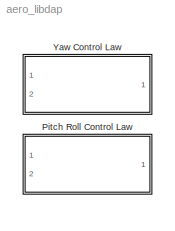
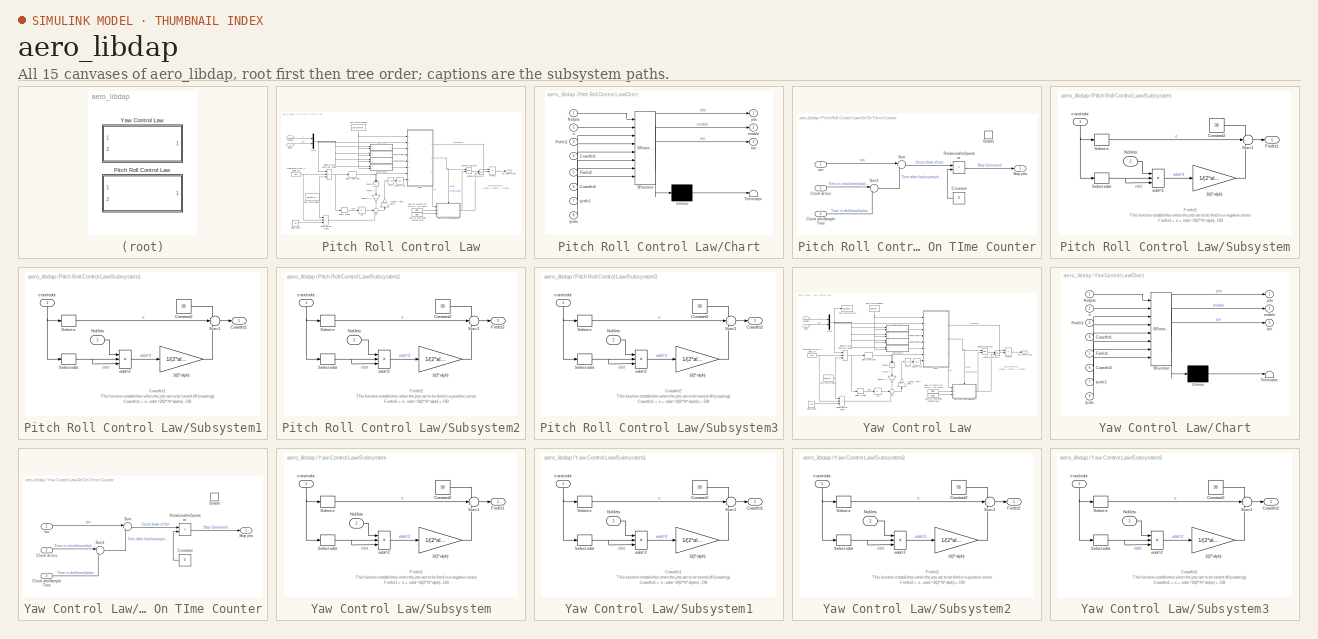
[diagram: thumbnail index - all 15 canvases of the model, root first then tree order]
MODEL aero_libdap
KIND library
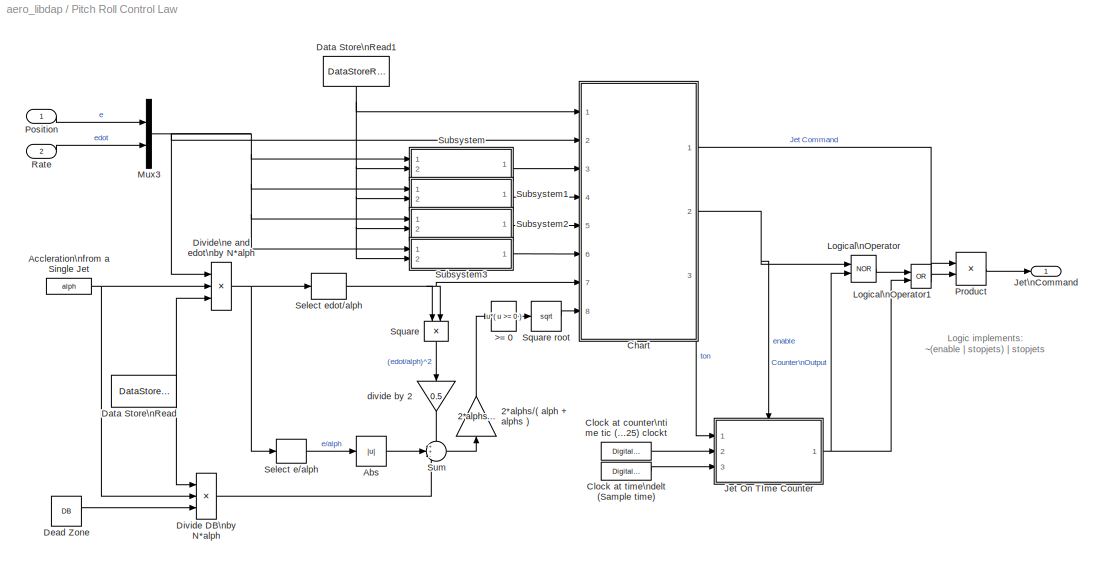
BLOCK [SubSystem] Pitch Roll Control Law
  MaskCallbackString = ||||
  MaskDescription = Implements Control Law for the LM. Works for yaw, u and v jet axes.
  MaskEnableString = on,on,on,on,on
  MaskIconFrame = on
  MaskIconOpaque = on
  MaskIconRotate = none
  MaskIconUnits = autoscale
  MaskPromptString = Single Jet Accel:|Single Jet Switch Curve Accel:|Dead Band:|Min. Jet On Time:|Sample Time:
  MaskStyleString = edit,edit,edit,edit,edit
  MaskTabNameString = ,,,,
  MaskToolTipString = on,on,on,on,on
  MaskTunableValueString = on,on,on,on,on
  MaskType = Control Law
  MaskValueString = ||DB|tmin|delt
  MaskVarAliasString = ,,,,
  MaskVariables = alph=@1;alphs=@2;DB=@3;tmin=@4;delt=@5;
  MaskVisibilityString = on,on,on,on,on
  MinAlgLoopOccurrences = off
  Ports = [2, 1]
  PropExecContextAcrossSSBoundary = on
  RTWSystemCode = Auto
  TreatAsAtomicUnit = off
BLOCK [Gain] Pitch Roll Control Law/2*alphs//( alph + alphs )
  Gain = 2*alphs/( alph + alphs )
BLOCK [Fcn] Pitch Roll Control Law/>= 0
  Expr = u*( u >= 0 )
BLOCK [Abs] Pitch Roll Control Law/Abs
BLOCK [Constant] Pitch Roll Control Law/Accleration\nfrom a Single Jet
  Value = alph
BLOCK [SubSystem] Pitch Roll Control Law/Chart
  MaskDescription = Stateflow diagram
  MaskDisplay = plot(sf('Private','sfblk','xIcon'),sf('Private','sfblk','yIcon'));text(0.5,0,sf('Private', 'sfblk', 'tIcon'),'HorizontalAl','Center','VerticalAl','Bottom');
  MaskIconFrame = off
  MaskIconOpaque = off
  MaskIconRotate = none
  MaskIconUnits = autoscale
  MaskSelfModifiable = on
  MaskType = Stateflow
  MinAlgLoopOccurrences = off
  Ports = [8, 3]
  PropExecContextAcrossSSBoundary = on
  RTWSystemCode = Auto
  TreatAsAtomicUnit = off
BLOCK [Demux] Pitch Roll Control Law/Chart/ Demux 
  Outputs = 1
  Ports = [1, 1]
BLOCK [S-Function] Pitch Roll Control Law/Chart/ SFunction 
  FunctionName = sf_sfun
  Parameters = delt,tmin
  PortCounts = [8 4]
  Ports = [8, 4]
  Tag = Stateflow S-Function aero_libdap 1
BLOCK [Terminator] Pitch Roll Control Law/Chart/ Terminator 
BLOCK [Inport] Pitch Roll Control Law/Chart/Coastfct1
  IconDisplay = Port number
  LatchInput = off
  Port = 4
BLOCK [Inport] Pitch Roll Control Law/Chart/Coastfct2
  IconDisplay = Port number
  LatchInput = off
  Port = 6
BLOCK [Inport] Pitch Roll Control Law/Chart/Firefct1
  IconDisplay = Port number
  LatchInput = off
  Port = 3
BLOCK [Inport] Pitch Roll Control Law/Chart/Firefct2
  IconDisplay = Port number
  LatchInput = off
  Port = 5
BLOCK [Inport] Pitch Roll Control Law/Chart/Nofjets
  IconDisplay = Port number
  LatchInput = off
  Port = 1
BLOCK [Inport] Pitch Roll Control Law/Chart/e
  IconDisplay = Port number
  LatchInput = off
  Port = 2
BLOCK [Outport] Pitch Roll Control Law/Chart/enable
  IconDisplay = Port number
  Port = 2
BLOCK [Outport] Pitch Roll Control Law/Chart/jets
  IconDisplay = Port number
BLOCK [Inport] Pitch Roll Control Law/Chart/tjcalc
  IconDisplay = Port number
  LatchInput = off
  Port = 8
BLOCK [Inport] Pitch Roll Control Law/Chart/tjcalc1
  IconDisplay = Port number
  LatchInput = off
  Port = 7
BLOCK [Outport] Pitch Roll Control Law/Chart/ton
  IconDisplay = Port number
  Port = 3
BLOCK [DigitalClock] Pitch Roll Control Law/Clock at counter\ntime tic (0.000625) clockt
  SampleTime = 0.000625
BLOCK [DigitalClock] Pitch Roll Control Law/Clock at time\ndelt (Sample time)
  SampleTime = delt
BLOCK [DataStoreRead] Pitch Roll Control Law/Data Store\nRead
  DataStoreName = PitchRollJets
  DialogController = Simulink.DDGSource
  SampleTime = delt
BLOCK [DataStoreRead] Pitch Roll Control Law/Data Store\nRead1
  DataStoreName = PitchRollJets
  DialogController = Simulink.DDGSource
  SampleTime = delt
BLOCK [Constant] Pitch Roll Control Law/Dead Zone
  Value = DB
BLOCK [Product] Pitch Roll Control Law/Divide DB\nby N*alph
  Inputs = //*
  Ports = [3, 1]
BLOCK [Product] Pitch Roll Control Law/Divide\ne and edot\nby N*alph
  Inputs = *//
  Ports = [3, 1]
BLOCK [SubSystem] Pitch Roll Control Law/Jet On TIme Counter
  MinAlgLoopOccurrences = off
  Ports = [3, 1, 1]
  PropExecContextAcrossSSBoundary = on
  RTWSystemCode = Auto
  TreatAsAtomicUnit = on
BLOCK [Inport] Pitch Roll Control Law/Jet On TIme Counter/Clock at tics
  IconDisplay = Port number
  LatchInput = off
  Port = 2
BLOCK [Inport] Pitch Roll Control Law/Jet On TIme Counter/Clock at\nSample Time
  IconDisplay = Port number
  LatchInput = off
  Port = 3
BLOCK [Constant] Pitch Roll Control Law/Jet On TIme Counter/Constant
  Value = 0
BLOCK [EnablePort] Pitch Roll Control Law/Jet On TIme Counter/Enable
  Ports = []
  StatesWhenEnabling = reset
BLOCK [RelationalOperator] Pitch Roll Control Law/Jet On TIme Counter/Relational\nOperator
  Operator = >
BLOCK [Outport] Pitch Roll Control Law/Jet On TIme Counter/Stop jets
  IconDisplay = Port number
BLOCK [Sum] Pitch Roll Control Law/Jet On TIme Counter/Sum
  IconShape = round
  Inputs = |+-
  Ports = [2, 1]
BLOCK [Sum] Pitch Roll Control Law/Jet On TIme Counter/Sum1
  IconShape = round
  Inputs = |+-
  Ports = [2, 1]
BLOCK [Inport] Pitch Roll Control Law/Jet On TIme Counter/ton
  IconDisplay = Port number
  LatchInput = off
  Port = 1
BLOCK [Outport] Pitch Roll Control Law/Jet\nCommand
  IconDisplay = Port number
  InitialOutput = 0
BLOCK [Logic] Pitch Roll Control Law/Logical\nOperator
  Operator = NOR
  Ports = [2, 1]
BLOCK [Logic] Pitch Roll Control Law/Logical\nOperator1
  Operator = OR
  Ports = [2, 1]
BLOCK [Mux] Pitch Roll Control Law/Mux3
  DisplayOption = bar
  Inputs = 2
  Ports = [2, 1]
BLOCK [Inport] Pitch Roll Control Law/Position
  IconDisplay = Port number
  LatchInput = off
  Port = 1
BLOCK [Product] Pitch Roll Control Law/Product
  Ports = [2, 1]
BLOCK [Inport] Pitch Roll Control Law/Rate
  IconDisplay = Port number
  LatchInput = off
  Port = 2
BLOCK [Selector] Pitch Roll Control Law/Select e//alph
  Elements = [1]
  InputPortWidth = 2
  Ports = [1, 1]
BLOCK [Selector] Pitch Roll Control Law/Select edot//alph
  Elements = [2]
  InputPortWidth = 2
  Ports = [1, 1]
BLOCK [Product] Pitch Roll Control Law/Square
  Ports = [2, 1]
BLOCK [Math] Pitch Roll Control Law/Square root
  Operator = sqrt
  Ports = [1, 1]
BLOCK [SubSystem] Pitch Roll Control Law/Subsystem
  MinAlgLoopOccurrences = off
  Ports = [2, 1]
  PropExecContextAcrossSSBoundary = on
  RTWSystemCode = Auto
  TreatAsAtomicUnit = off
BLOCK [Gain] Pitch Roll Control Law/Subsystem/1//(2*alph)
  Gain = 1/(2*alph)
BLOCK [Constant] Pitch Roll Control Law/Subsystem/Constant2
  Value = DB
BLOCK [Outport] Pitch Roll Control Law/Subsystem/Firefct1
  IconDisplay = Port number
BLOCK [Inport] Pitch Roll Control Law/Subsystem/NofJets
  IconDisplay = Port number
  LatchInput = off
  Port = 2
BLOCK [Selector] Pitch Roll Control Law/Subsystem/Select e
  Elements = [1]
  InputPortWidth = 2
  Ports = [1, 1]
BLOCK [Selector] Pitch Roll Control Law/Subsystem/Select edot
  Elements = [2]
  InputPortWidth = 2
  Ports = [1, 1]
BLOCK [Sum] Pitch Roll Control Law/Subsystem/Sum1
  IconShape = round
  Inputs = -++
  Ports = [3, 1]
BLOCK [Inport] Pitch Roll Control Law/Subsystem/e and edot
  IconDisplay = Port number
  LatchInput = off
  Port = 1
BLOCK [Product] Pitch Roll Control Law/Subsystem/edot^2
  Inputs = /**
  Ports = [3, 1]
BLOCK [SubSystem] Pitch Roll Control Law/Subsystem1
  MinAlgLoopOccurrences = off
  Ports = [2, 1]
  PropExecContextAcrossSSBoundary = on
  RTWSystemCode = Auto
  TreatAsAtomicUnit = off
BLOCK [Gain] Pitch Roll Control Law/Subsystem1/1//(2*alph)
  Gain = 1/(2*alphs)
BLOCK [Outport] Pitch Roll Control Law/Subsystem1/Coastfct1
  IconDisplay = Port number
BLOCK [Constant] Pitch Roll Control Law/Subsystem1/Constant2
  Value = DB
BLOCK [Inport] Pitch Roll Control Law/Subsystem1/NofJets
  IconDisplay = Port number
  LatchInput = off
  Port = 2
BLOCK [Selector] Pitch Roll Control Law/Subsystem1/Select e
  Elements = [1]
  InputPortWidth = 2
  Ports = [1, 1]
BLOCK [Selector] Pitch Roll Control Law/Subsystem1/Select edot
  Elements = [2]
  InputPortWidth = 2
  Ports = [1, 1]
BLOCK [Sum] Pitch Roll Control Law/Subsystem1/Sum1
  IconShape = round
  Inputs = -+-
  Ports = [3, 1]
BLOCK [Inport] Pitch Roll Control Law/Subsystem1/e and edot
  IconDisplay = Port number
  LatchInput = off
  Port = 1
BLOCK [Product] Pitch Roll Control Law/Subsystem1/edot^2
  Inputs = /**
  Ports = [3, 1]
BLOCK [SubSystem] Pitch Roll Control Law/Subsystem2
  MinAlgLoopOccurrences = off
  Ports = [2, 1]
  PropExecContextAcrossSSBoundary = on
  RTWSystemCode = Auto
  TreatAsAtomicUnit = off
BLOCK [Gain] Pitch Roll Control Law/Subsystem2/1//(2*alph)
  Gain = 1/(2*alph)
BLOCK [Constant] Pitch Roll Control Law/Subsystem2/Constant2
  Value = DB
BLOCK [Outport] Pitch Roll Control Law/Subsystem2/Firefct2
  IconDisplay = Port number
BLOCK [Inport] Pitch Roll Control Law/Subsystem2/NofJets
  IconDisplay = Port number
  LatchInput = off
  Port = 2
BLOCK [Selector] Pitch Roll Control Law/Subsystem2/Select e
  Elements = [1]
  InputPortWidth = 2
  Ports = [1, 1]
BLOCK [Selector] Pitch Roll Control Law/Subsystem2/Select edot
  Elements = [2]
  InputPortWidth = 2
  Ports = [1, 1]
BLOCK [Sum] Pitch Roll Control Law/Subsystem2/Sum1
  IconShape = round
  Inputs = ++-
  Ports = [3, 1]
BLOCK [Inport] Pitch Roll Control Law/Subsystem2/e and edot
  IconDisplay = Port number
  LatchInput = off
  Port = 1
BLOCK [Product] Pitch Roll Control Law/Subsystem2/edot^2
  Inputs = /**
  Ports = [3, 1]
BLOCK [SubSystem] Pitch Roll Control Law/Subsystem3
  MinAlgLoopOccurrences = off
  Ports = [2, 1]
  PropExecContextAcrossSSBoundary = on
  RTWSystemCode = Auto
  TreatAsAtomicUnit = off
BLOCK [Gain] Pitch Roll Control Law/Subsystem3/1//(2*alph)
  Gain = 1/(2*alphs)
BLOCK [Outport] Pitch Roll Control Law/Subsystem3/Coastfct2
  IconDisplay = Port number
BLOCK [Constant] Pitch Roll Control Law/Subsystem3/Constant2
  Value = DB
BLOCK [Inport] Pitch Roll Control Law/Subsystem3/NofJets
  IconDisplay = Port number
  LatchInput = off
  Port = 2
BLOCK [Selector] Pitch Roll Control Law/Subsystem3/Select e
  Elements = [1]
  InputPortWidth = 2
  Ports = [1, 1]
BLOCK [Selector] Pitch Roll Control Law/Subsystem3/Select edot
  Elements = [2]
  InputPortWidth = 2
  Ports = [1, 1]
BLOCK [Sum] Pitch Roll Control Law/Subsystem3/Sum1
  IconShape = round
  Inputs = +++
  Ports = [3, 1]
BLOCK [Inport] Pitch Roll Control Law/Subsystem3/e and edot
  IconDisplay = Port number
  LatchInput = off
  Port = 1
BLOCK [Product] Pitch Roll Control Law/Subsystem3/edot^2
  Inputs = /**
  Ports = [3, 1]
BLOCK [Sum] Pitch Roll Control Law/Sum
  IconShape = round
  Inputs = ++-
  Ports = [3, 1]
BLOCK [Gain] Pitch Roll Control Law/divide by 2
  Gain = 0.5
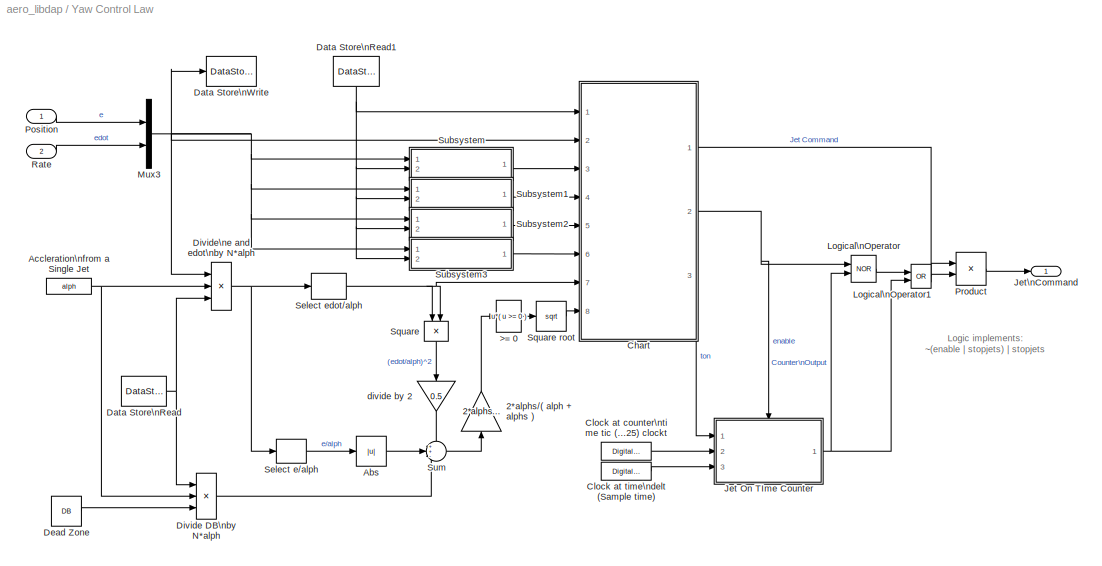
BLOCK [SubSystem] Yaw Control Law
  MaskCallbackString = ||||
  MaskDescription = Implements Control Law for the LM. Works for yaw, u and v jet axes.
  MaskEnableString = on,on,on,on,on
  MaskIconFrame = on
  MaskIconOpaque = on
  MaskIconRotate = none
  MaskIconUnits = autoscale
  MaskPromptString = Single Jet Accel:|Single Jet Switch Curve Accel:|Dead Band:|Min Jet On Time:|Sample Time:
  MaskStyleString = edit,edit,edit,edit,edit
  MaskTabNameString = ,,,,
  MaskToolTipString = on,on,on,on,on
  MaskTunableValueString = on,on,on,on,on
  MaskType = Control Law
  MaskValueString = ||DB|tmin|delt
  MaskVarAliasString = ,,,,
  MaskVariables = alph=@1;alphs=@2;DB=@3;tmin=@4;delt=@5;
  MaskVisibilityString = on,on,on,on,on
  MinAlgLoopOccurrences = off
  Ports = [2, 1]
  PropExecContextAcrossSSBoundary = on
  RTWSystemCode = Auto
  TreatAsAtomicUnit = off
BLOCK [Gain] Yaw Control Law/2*alphs//( alph + alphs )
  Gain = 2*alphs/( alph + alphs )
BLOCK [Fcn] Yaw Control Law/>= 0
  Expr = u*( u >= 0 )
BLOCK [Abs] Yaw Control Law/Abs
BLOCK [Constant] Yaw Control Law/Accleration\nfrom a Single Jet
  Value = alph
BLOCK [SubSystem] Yaw Control Law/Chart
  MaskDescription = Stateflow diagram
  MaskDisplay = plot(sf('Private','sfblk','xIcon'),sf('Private','sfblk','yIcon'));text(0.5,0,sf('Private', 'sfblk', 'tIcon'),'HorizontalAl','Center','VerticalAl','Bottom');
  MaskIconFrame = off
  MaskIconOpaque = off
  MaskIconRotate = none
  MaskIconUnits = autoscale
  MaskSelfModifiable = on
  MaskType = Stateflow
  MinAlgLoopOccurrences = off
  Ports = [8, 3]
  PropExecContextAcrossSSBoundary = on
  RTWSystemCode = Auto
  TreatAsAtomicUnit = off
BLOCK [Demux] Yaw Control Law/Chart/ Demux 
  Outputs = 1
  Ports = [1, 1]
BLOCK [S-Function] Yaw Control Law/Chart/ SFunction 
  FunctionName = sf_sfun
  Parameters = delt,tmin
  PortCounts = [8 4]
  Ports = [8, 4]
  Tag = Stateflow S-Function aero_libdap 4
BLOCK [Terminator] Yaw Control Law/Chart/ Terminator 
BLOCK [Inport] Yaw Control Law/Chart/Coastfct1
  IconDisplay = Port number
  LatchInput = off
  Port = 4
BLOCK [Inport] Yaw Control Law/Chart/Coastfct2
  IconDisplay = Port number
  LatchInput = off
  Port = 6
BLOCK [Inport] Yaw Control Law/Chart/Firefct1
  IconDisplay = Port number
  LatchInput = off
  Port = 3
BLOCK [Inport] Yaw Control Law/Chart/Firefct2
  IconDisplay = Port number
  LatchInput = off
  Port = 5
BLOCK [Inport] Yaw Control Law/Chart/Nofjets
  IconDisplay = Port number
  LatchInput = off
  Port = 1
BLOCK [Inport] Yaw Control Law/Chart/e
  IconDisplay = Port number
  LatchInput = off
  Port = 2
BLOCK [Outport] Yaw Control Law/Chart/enable
  IconDisplay = Port number
  Port = 2
BLOCK [Outport] Yaw Control Law/Chart/jets
  IconDisplay = Port number
BLOCK [Inport] Yaw Control Law/Chart/tjcalc
  IconDisplay = Port number
  LatchInput = off
  Port = 8
BLOCK [Inport] Yaw Control Law/Chart/tjcalc1
  IconDisplay = Port number
  LatchInput = off
  Port = 7
BLOCK [Outport] Yaw Control Law/Chart/ton
  IconDisplay = Port number
  Port = 3
BLOCK [DigitalClock] Yaw Control Law/Clock at counter\ntime tic (0.000625) clockt
  SampleTime = 0.000625
BLOCK [DigitalClock] Yaw Control Law/Clock at time\ndelt (Sample time)
  SampleTime = delt
BLOCK [DataStoreRead] Yaw Control Law/Data Store\nRead
  DataStoreName = NofJets
  DialogController = Simulink.DDGSource
  SampleTime = delt
BLOCK [DataStoreRead] Yaw Control Law/Data Store\nRead1
  DataStoreName = NofJets
  DialogController = Simulink.DDGSource
  SampleTime = delt
BLOCK [DataStoreWrite] Yaw Control Law/Data Store\nWrite
  DataStoreName = e_edot
  DialogController = Simulink.DDGSource
  SampleTime = -1
BLOCK [Constant] Yaw Control Law/Dead Zone
  Value = DB
BLOCK [Product] Yaw Control Law/Divide DB\nby N*alph
  Inputs = //*
  Ports = [3, 1]
BLOCK [Product] Yaw Control Law/Divide\ne and edot\nby N*alph
  Inputs = *//
  Ports = [3, 1]
BLOCK [SubSystem] Yaw Control Law/Jet On TIme Counter
  MinAlgLoopOccurrences = off
  Ports = [3, 1, 1]
  PropExecContextAcrossSSBoundary = on
  RTWSystemCode = Auto
  TreatAsAtomicUnit = on
BLOCK [Inport] Yaw Control Law/Jet On TIme Counter/Clock at tics
  IconDisplay = Port number
  LatchInput = off
  Port = 2
BLOCK [Inport] Yaw Control Law/Jet On TIme Counter/Clock at\nSample Time
  IconDisplay = Port number
  LatchInput = off
  Port = 3
BLOCK [Constant] Yaw Control Law/Jet On TIme Counter/Constant
  Value = 0
BLOCK [EnablePort] Yaw Control Law/Jet On TIme Counter/Enable
  Ports = []
  StatesWhenEnabling = reset
BLOCK [RelationalOperator] Yaw Control Law/Jet On TIme Counter/Relational\nOperator
  Operator = >
BLOCK [Outport] Yaw Control Law/Jet On TIme Counter/Stop jets
  IconDisplay = Port number
BLOCK [Sum] Yaw Control Law/Jet On TIme Counter/Sum
  IconShape = round
  Inputs = |+-
  Ports = [2, 1]
BLOCK [Sum] Yaw Control Law/Jet On TIme Counter/Sum1
  IconShape = round
  Inputs = |+-
  Ports = [2, 1]
BLOCK [Inport] Yaw Control Law/Jet On TIme Counter/ton
  IconDisplay = Port number
  LatchInput = off
  Port = 1
BLOCK [Outport] Yaw Control Law/Jet\nCommand
  IconDisplay = Port number
  InitialOutput = 0
BLOCK [Logic] Yaw Control Law/Logical\nOperator
  Operator = NOR
  Ports = [2, 1]
BLOCK [Logic] Yaw Control Law/Logical\nOperator1
  Operator = OR
  Ports = [2, 1]
BLOCK [Mux] Yaw Control Law/Mux3
  DisplayOption = bar
  Inputs = 2
  Ports = [2, 1]
BLOCK [Inport] Yaw Control Law/Position
  IconDisplay = Port number
  LatchInput = off
  Port = 1
BLOCK [Product] Yaw Control Law/Product
  Ports = [2, 1]
BLOCK [Inport] Yaw Control Law/Rate
  IconDisplay = Port number
  LatchInput = off
  Port = 2
BLOCK [Selector] Yaw Control Law/Select e//alph
  Elements = [1]
  InputPortWidth = 2
  Ports = [1, 1]
BLOCK [Selector] Yaw Control Law/Select edot//alph
  Elements = [2]
  InputPortWidth = 2
  Ports = [1, 1]
BLOCK [Product] Yaw Control Law/Square
  Ports = [2, 1]
BLOCK [Math] Yaw Control Law/Square root
  Operator = sqrt
  Ports = [1, 1]
BLOCK [SubSystem] Yaw Control Law/Subsystem
  MinAlgLoopOccurrences = off
  Ports = [2, 1]
  PropExecContextAcrossSSBoundary = on
  RTWSystemCode = Auto
  TreatAsAtomicUnit = off
BLOCK [Gain] Yaw Control Law/Subsystem/1//(2*alph)
  Gain = 1/(2*alph)
BLOCK [Constant] Yaw Control Law/Subsystem/Constant2
  Value = DB
BLOCK [Outport] Yaw Control Law/Subsystem/Firefct1
  IconDisplay = Port number
BLOCK [Inport] Yaw Control Law/Subsystem/NofJets
  IconDisplay = Port number
  LatchInput = off
  Port = 2
BLOCK [Selector] Yaw Control Law/Subsystem/Select e
  Elements = [1]
  InputPortWidth = 2
  Ports = [1, 1]
BLOCK [Selector] Yaw Control Law/Subsystem/Select edot
  Elements = [2]
  InputPortWidth = 2
  Ports = [1, 1]
BLOCK [Sum] Yaw Control Law/Subsystem/Sum1
  IconShape = round
  Inputs = -++
  Ports = [3, 1]
BLOCK [Inport] Yaw Control Law/Subsystem/e and edot
  IconDisplay = Port number
  LatchInput = off
  Port = 1
BLOCK [Product] Yaw Control Law/Subsystem/edot^2
  Inputs = /**
  Ports = [3, 1]
BLOCK [SubSystem] Yaw Control Law/Subsystem1
  MinAlgLoopOccurrences = off
  Ports = [2, 1]
  PropExecContextAcrossSSBoundary = on
  RTWSystemCode = Auto
  TreatAsAtomicUnit = off
BLOCK [Gain] Yaw Control Law/Subsystem1/1//(2*alph)
  Gain = 1/(2*alphs)
BLOCK [Outport] Yaw Control Law/Subsystem1/Coastfct1
  IconDisplay = Port number
BLOCK [Constant] Yaw Control Law/Subsystem1/Constant2
  Value = DB
BLOCK [Inport] Yaw Control Law/Subsystem1/NofJets
  IconDisplay = Port number
  LatchInput = off
  Port = 2
BLOCK [Selector] Yaw Control Law/Subsystem1/Select e
  Elements = [1]
  InputPortWidth = 2
  Ports = [1, 1]
BLOCK [Selector] Yaw Control Law/Subsystem1/Select edot
  Elements = [2]
  InputPortWidth = 2
  Ports = [1, 1]
BLOCK [Sum] Yaw Control Law/Subsystem1/Sum1
  IconShape = round
  Inputs = -+-
  Ports = [3, 1]
BLOCK [Inport] Yaw Control Law/Subsystem1/e and edot
  IconDisplay = Port number
  LatchInput = off
  Port = 1
BLOCK [Product] Yaw Control Law/Subsystem1/edot^2
  Inputs = /**
  Ports = [3, 1]
BLOCK [SubSystem] Yaw Control Law/Subsystem2
  MinAlgLoopOccurrences = off
  Ports = [2, 1]
  PropExecContextAcrossSSBoundary = on
  RTWSystemCode = Auto
  TreatAsAtomicUnit = off
BLOCK [Gain] Yaw Control Law/Subsystem2/1//(2*alph)
  Gain = 1/(2*alph)
BLOCK [Constant] Yaw Control Law/Subsystem2/Constant2
  Value = DB
BLOCK [Outport] Yaw Control Law/Subsystem2/Firefct2
  IconDisplay = Port number
BLOCK [Inport] Yaw Control Law/Subsystem2/NofJets
  IconDisplay = Port number
  LatchInput = off
  Port = 2
BLOCK [Selector] Yaw Control Law/Subsystem2/Select e
  Elements = [1]
  InputPortWidth = 2
  Ports = [1, 1]
BLOCK [Selector] Yaw Control Law/Subsystem2/Select edot
  Elements = [2]
  InputPortWidth = 2
  Ports = [1, 1]
BLOCK [Sum] Yaw Control Law/Subsystem2/Sum1
  IconShape = round
  Inputs = ++-
  Ports = [3, 1]
BLOCK [Inport] Yaw Control Law/Subsystem2/e and edot
  IconDisplay = Port number
  LatchInput = off
  Port = 1
BLOCK [Product] Yaw Control Law/Subsystem2/edot^2
  Inputs = /**
  Ports = [3, 1]
BLOCK [SubSystem] Yaw Control Law/Subsystem3
  MinAlgLoopOccurrences = off
  Ports = [2, 1]
  PropExecContextAcrossSSBoundary = on
  RTWSystemCode = Auto
  TreatAsAtomicUnit = off
BLOCK [Gain] Yaw Control Law/Subsystem3/1//(2*alph)
  Gain = 1/(2*alphs)
BLOCK [Outport] Yaw Control Law/Subsystem3/Coastfct2
  IconDisplay = Port number
BLOCK [Constant] Yaw Control Law/Subsystem3/Constant2
  Value = DB
BLOCK [Inport] Yaw Control Law/Subsystem3/NofJets
  IconDisplay = Port number
  LatchInput = off
  Port = 2
BLOCK [Selector] Yaw Control Law/Subsystem3/Select e
  Elements = [1]
  InputPortWidth = 2
  Ports = [1, 1]
BLOCK [Selector] Yaw Control Law/Subsystem3/Select edot
  Elements = [2]
  InputPortWidth = 2
  Ports = [1, 1]
BLOCK [Sum] Yaw Control Law/Subsystem3/Sum1
  IconShape = round
  Inputs = +++
  Ports = [3, 1]
BLOCK [Inport] Yaw Control Law/Subsystem3/e and edot
  IconDisplay = Port number
  LatchInput = off
  Port = 1
BLOCK [Product] Yaw Control Law/Subsystem3/edot^2
  Inputs = /**
  Ports = [3, 1]
BLOCK [Sum] Yaw Control Law/Sum
  IconShape = round
  Inputs = ++-
  Ports = [3, 1]
BLOCK [Gain] Yaw Control Law/divide by 2
  Gain = 0.5
ANNOTATION Pitch Roll Control Law: Logic implements:\n~(enable | stopjets) | stopjets
ANNOTATION Pitch Roll Control Law/Subsystem: Firefct1\nThis function establishes when the jets are to be fired in a negative sense\nFirefct1 = e + edot ^2/(2*N*alph) - DB
ANNOTATION Pitch Roll Control Law/Subsystem1: Coastfct1\nThis function establishes when the jets are to be turned off (coasting)\nCoastfct1 = e - edot ^2/(2*N*alphs) - DB
ANNOTATION Pitch Roll Control Law/Subsystem2: Firefct2\nThis function establishes when the jets are to be fired in a positive sense\nFirefct2 = e - edot ^2/(2*N*alph) + DB
ANNOTATION Pitch Roll Control Law/Subsystem3: Coastfct2\nThis function establishes when the jets are to be turned off (coasting)\nCoastfct1 = e + edot ^2/(2*N*alphs) + DB
ANNOTATION Yaw Control Law: Logic implements:\n~(enable | stopjets) | stopjets
ANNOTATION Yaw Control Law/Subsystem: Firefct1\nThis function establishes when the jets are to be fired in a negative sense\nFirefct1 = e + edot ^2/(2*N*alph) - DB
ANNOTATION Yaw Control Law/Subsystem1: Coastfct1\nThis function establishes when the jets are to be turned off (coasting)\nCoastfct1 = e - edot ^2/(2*N*alphs) - DB
ANNOTATION Yaw Control Law/Subsystem2: Firefct2\nThis function establishes when the jets are to be fired in a positive sense\nFirefct2 = e - edot ^2/(2*N*alph) + DB
ANNOTATION Yaw Control Law/Subsystem3: Coastfct2\nThis function establishes when the jets are to be turned off (coasting)\nCoastfct1 = e + edot ^2/(2*N*alphs) + DB
LINE Pitch Roll Control Law/2*alphs//( alph + alphs ):1 -> Pitch Roll Control Law/>= 0:1
LINE Pitch Roll Control Law/>= 0:1 -> Pitch Roll Control Law/Square root:1
LINE Pitch Roll Control Law/Abs:1 -> Pitch Roll Control Law/Sum:2
NET Pitch Roll Control Law/Accleration\nfrom a Single Jet:1 -> Pitch Roll Control Law/Divide DB\nby N*alph:2, Pitch Roll Control Law/Divide\ne and edot\nby N*alph:2
LINE Pitch Roll Control Law/Chart/ Demux :1 -> Pitch Roll Control Law/Chart/ Terminator :1
LINE Pitch Roll Control Law/Chart/ SFunction :1 -> Pitch Roll Control Law/Chart/ Demux :1
LINE Pitch Roll Control Law/Chart/ SFunction :2 -> Pitch Roll Control Law/Chart/jets:1
LINE Pitch Roll Control Law/Chart/ SFunction :3 -> Pitch Roll Control Law/Chart/enable:1
LINE Pitch Roll Control Law/Chart/ SFunction :4 -> Pitch Roll Control Law/Chart/ton:1
LINE Pitch Roll Control Law/Chart/Coastfct1:1 -> Pitch Roll Control Law/Chart/ SFunction :4
LINE Pitch Roll Control Law/Chart/Coastfct2:1 -> Pitch Roll Control Law/Chart/ SFunction :6
LINE Pitch Roll Control Law/Chart/Firefct1:1 -> Pitch Roll Control Law/Chart/ SFunction :3
LINE Pitch Roll Control Law/Chart/Firefct2:1 -> Pitch Roll Control Law/Chart/ SFunction :5
LINE Pitch Roll Control Law/Chart/Nofjets:1 -> Pitch Roll Control Law/Chart/ SFunction :1
LINE Pitch Roll Control Law/Chart/e:1 -> Pitch Roll Control Law/Chart/ SFunction :2
LINE Pitch Roll Control Law/Chart/tjcalc1:1 -> Pitch Roll Control Law/Chart/ SFunction :7
LINE Pitch Roll Control Law/Chart/tjcalc:1 -> Pitch Roll Control Law/Chart/ SFunction :8
LINE Pitch Roll Control Law/Chart:1 -> Pitch Roll Control Law/Product:1
NET Pitch Roll Control Law/Chart:2 -> Pitch Roll Control Law/Jet On TIme Counter:enable, Pitch Roll Control Law/Logical\nOperator:1
LINE Pitch Roll Control Law/Chart:3 -> Pitch Roll Control Law/Jet On TIme Counter:1
LINE Pitch Roll Control Law/Clock at counter\ntime tic (0.000625) clockt:1 -> Pitch Roll Control Law/Jet On TIme Counter:2
LINE Pitch Roll Control Law/Clock at time\ndelt (Sample time):1 -> Pitch Roll Control Law/Jet On TIme Counter:3
NET Pitch Roll Control Law/Data Store\nRead1:1 -> Pitch Roll Control Law/Chart:1, Pitch Roll Control Law/Subsystem1:2, Pitch Roll Control Law/Subsystem2:2, Pitch Roll Control Law/Subsystem3:2, Pitch Roll Control Law/Subsystem:2
NET Pitch Roll Control Law/Data Store\nRead:1 -> Pitch Roll Control Law/Divide DB\nby N*alph:1, Pitch Roll Control Law/Divide\ne and edot\nby N*alph:3
LINE Pitch Roll Control Law/Dead Zone:1 -> Pitch Roll Control Law/Divide DB\nby N*alph:3
LINE Pitch Roll Control Law/Divide DB\nby N*alph:1 -> Pitch Roll Control Law/Sum:3
NET Pitch Roll Control Law/Divide\ne and edot\nby N*alph:1 -> Pitch Roll Control Law/Select e//alph:1, Pitch Roll Control Law/Select edot//alph:1
LINE Pitch Roll Control Law/Jet On TIme Counter/Clock at tics:1 -> Pitch Roll Control Law/Jet On TIme Counter/Sum1:1
LINE Pitch Roll Control Law/Jet On TIme Counter/Clock at\nSample Time:1 -> Pitch Roll Control Law/Jet On TIme Counter/Sum1:2
LINE Pitch Roll Control Law/Jet On TIme Counter/Constant:1 -> Pitch Roll Control Law/Jet On TIme Counter/Relational\nOperator:2
LINE Pitch Roll Control Law/Jet On TIme Counter/Relational\nOperator:1 -> Pitch Roll Control Law/Jet On TIme Counter/Stop jets:1
LINE Pitch Roll Control Law/Jet On TIme Counter/Sum1:1 -> Pitch Roll Control Law/Jet On TIme Counter/Sum:2
LINE Pitch Roll Control Law/Jet On TIme Counter/Sum:1 -> Pitch Roll Control Law/Jet On TIme Counter/Relational\nOperator:1
LINE Pitch Roll Control Law/Jet On TIme Counter/ton:1 -> Pitch Roll Control Law/Jet On TIme Counter/Sum:1
NET Pitch Roll Control Law/Jet On TIme Counter:1 -> Pitch Roll Control Law/Logical\nOperator1:2, Pitch Roll Control Law/Logical\nOperator:2
LINE Pitch Roll Control Law/Logical\nOperator1:1 -> Pitch Roll Control Law/Product:2
LINE Pitch Roll Control Law/Logical\nOperator:1 -> Pitch Roll Control Law/Logical\nOperator1:1
NET Pitch Roll Control Law/Mux3:1 -> Pitch Roll Control Law/Chart:2, Pitch Roll Control Law/Divide\ne and edot\nby N*alph:1, Pitch Roll Control Law/Subsystem1:1, Pitch Roll Control Law/Subsystem2:1, Pitch Roll Control Law/Subsystem3:1, Pitch Roll Control Law/Subsystem:1
LINE Pitch Roll Control Law/Position:1 -> Pitch Roll Control Law/Mux3:1
LINE Pitch Roll Control Law/Product:1 -> Pitch Roll Control Law/Jet\nCommand:1
LINE Pitch Roll Control Law/Rate:1 -> Pitch Roll Control Law/Mux3:2
LINE Pitch Roll Control Law/Select e//alph:1 -> Pitch Roll Control Law/Abs:1
NET Pitch Roll Control Law/Select edot//alph:1 -> Pitch Roll Control Law/Chart:7, Pitch Roll Control Law/Square:1, Pitch Roll Control Law/Square:2
LINE Pitch Roll Control Law/Square root:1 -> Pitch Roll Control Law/Chart:8
LINE Pitch Roll Control Law/Square:1 -> Pitch Roll Control Law/divide by 2:1
LINE Pitch Roll Control Law/Subsystem/1//(2*alph):1 -> Pitch Roll Control Law/Subsystem/Sum1:3
LINE Pitch Roll Control Law/Subsystem/Constant2:1 -> Pitch Roll Control Law/Subsystem/Sum1:1
LINE Pitch Roll Control Law/Subsystem/NofJets:1 -> Pitch Roll Control Law/Subsystem/edot^2:1
LINE Pitch Roll Control Law/Subsystem/Select e:1 -> Pitch Roll Control Law/Subsystem/Sum1:2
NET Pitch Roll Control Law/Subsystem/Select edot:1 -> Pitch Roll Control Law/Subsystem/edot^2:2, Pitch Roll Control Law/Subsystem/edot^2:3
LINE Pitch Roll Control Law/Subsystem/Sum1:1 -> Pitch Roll Control Law/Subsystem/Firefct1:1
NET Pitch Roll Control Law/Subsystem/e and edot:1 -> Pitch Roll Control Law/Subsystem/Select e:1, Pitch Roll Control Law/Subsystem/Select edot:1
LINE Pitch Roll Control Law/Subsystem/edot^2:1 -> Pitch Roll Control Law/Subsystem/1//(2*alph):1
LINE Pitch Roll Control Law/Subsystem1/1//(2*alph):1 -> Pitch Roll Control Law/Subsystem1/Sum1:3
LINE Pitch Roll Control Law/Subsystem1/Constant2:1 -> Pitch Roll Control Law/Subsystem1/Sum1:1
LINE Pitch Roll Control Law/Subsystem1/NofJets:1 -> Pitch Roll Control Law/Subsystem1/edot^2:1
LINE Pitch Roll Control Law/Subsystem1/Select e:1 -> Pitch Roll Control Law/Subsystem1/Sum1:2
NET Pitch Roll Control Law/Subsystem1/Select edot:1 -> Pitch Roll Control Law/Subsystem1/edot^2:2, Pitch Roll Control Law/Subsystem1/edot^2:3
LINE Pitch Roll Control Law/Subsystem1/Sum1:1 -> Pitch Roll Control Law/Subsystem1/Coastfct1:1
NET Pitch Roll Control Law/Subsystem1/e and edot:1 -> Pitch Roll Control Law/Subsystem1/Select e:1, Pitch Roll Control Law/Subsystem1/Select edot:1
LINE Pitch Roll Control Law/Subsystem1/edot^2:1 -> Pitch Roll Control Law/Subsystem1/1//(2*alph):1
LINE Pitch Roll Control Law/Subsystem1:1 -> Pitch Roll Control Law/Chart:4
LINE Pitch Roll Control Law/Subsystem2/1//(2*alph):1 -> Pitch Roll Control Law/Subsystem2/Sum1:3
LINE Pitch Roll Control Law/Subsystem2/Constant2:1 -> Pitch Roll Control Law/Subsystem2/Sum1:1
LINE Pitch Roll Control Law/Subsystem2/NofJets:1 -> Pitch Roll Control Law/Subsystem2/edot^2:1
LINE Pitch Roll Control Law/Subsystem2/Select e:1 -> Pitch Roll Control Law/Subsystem2/Sum1:2
NET Pitch Roll Control Law/Subsystem2/Select edot:1 -> Pitch Roll Control Law/Subsystem2/edot^2:2, Pitch Roll Control Law/Subsystem2/edot^2:3
LINE Pitch Roll Control Law/Subsystem2/Sum1:1 -> Pitch Roll Control Law/Subsystem2/Firefct2:1
NET Pitch Roll Control Law/Subsystem2/e and edot:1 -> Pitch Roll Control Law/Subsystem2/Select e:1, Pitch Roll Control Law/Subsystem2/Select edot:1
LINE Pitch Roll Control Law/Subsystem2/edot^2:1 -> Pitch Roll Control Law/Subsystem2/1//(2*alph):1
LINE Pitch Roll Control Law/Subsystem2:1 -> Pitch Roll Control Law/Chart:5
LINE Pitch Roll Control Law/Subsystem3/1//(2*alph):1 -> Pitch Roll Control Law/Subsystem3/Sum1:3
LINE Pitch Roll Control Law/Subsystem3/Constant2:1 -> Pitch Roll Control Law/Subsystem3/Sum1:1
LINE Pitch Roll Control Law/Subsystem3/NofJets:1 -> Pitch Roll Control Law/Subsystem3/edot^2:1
LINE Pitch Roll Control Law/Subsystem3/Select e:1 -> Pitch Roll Control Law/Subsystem3/Sum1:2
NET Pitch Roll Control Law/Subsystem3/Select edot:1 -> Pitch Roll Control Law/Subsystem3/edot^2:2, Pitch Roll Control Law/Subsystem3/edot^2:3
LINE Pitch Roll Control Law/Subsystem3/Sum1:1 -> Pitch Roll Control Law/Subsystem3/Coastfct2:1
NET Pitch Roll Control Law/Subsystem3/e and edot:1 -> Pitch Roll Control Law/Subsystem3/Select e:1, Pitch Roll Control Law/Subsystem3/Select edot:1
LINE Pitch Roll Control Law/Subsystem3/edot^2:1 -> Pitch Roll Control Law/Subsystem3/1//(2*alph):1
LINE Pitch Roll Control Law/Subsystem3:1 -> Pitch Roll Control Law/Chart:6
LINE Pitch Roll Control Law/Subsystem:1 -> Pitch Roll Control Law/Chart:3
LINE Pitch Roll Control Law/Sum:1 -> Pitch Roll Control Law/2*alphs//( alph + alphs ):1
LINE Pitch Roll Control Law/divide by 2:1 -> Pitch Roll Control Law/Sum:1
LINE Yaw Control Law/2*alphs//( alph + alphs ):1 -> Yaw Control Law/>= 0:1
LINE Yaw Control Law/>= 0:1 -> Yaw Control Law/Square root:1
LINE Yaw Control Law/Abs:1 -> Yaw Control Law/Sum:2
NET Yaw Control Law/Accleration\nfrom a Single Jet:1 -> Yaw Control Law/Divide DB\nby N*alph:2, Yaw Control Law/Divide\ne and edot\nby N*alph:2
LINE Yaw Control Law/Chart/ Demux :1 -> Yaw Control Law/Chart/ Terminator :1
LINE Yaw Control Law/Chart/ SFunction :1 -> Yaw Control Law/Chart/ Demux :1
LINE Yaw Control Law/Chart/ SFunction :2 -> Yaw Control Law/Chart/jets:1
LINE Yaw Control Law/Chart/ SFunction :3 -> Yaw Control Law/Chart/enable:1
LINE Yaw Control Law/Chart/ SFunction :4 -> Yaw Control Law/Chart/ton:1
LINE Yaw Control Law/Chart/Coastfct1:1 -> Yaw Control Law/Chart/ SFunction :4
LINE Yaw Control Law/Chart/Coastfct2:1 -> Yaw Control Law/Chart/ SFunction :6
LINE Yaw Control Law/Chart/Firefct1:1 -> Yaw Control Law/Chart/ SFunction :3
LINE Yaw Control Law/Chart/Firefct2:1 -> Yaw Control Law/Chart/ SFunction :5
LINE Yaw Control Law/Chart/Nofjets:1 -> Yaw Control Law/Chart/ SFunction :1
LINE Yaw Control Law/Chart/e:1 -> Yaw Control Law/Chart/ SFunction :2
LINE Yaw Control Law/Chart/tjcalc1:1 -> Yaw Control Law/Chart/ SFunction :7
LINE Yaw Control Law/Chart/tjcalc:1 -> Yaw Control Law/Chart/ SFunction :8
LINE Yaw Control Law/Chart:1 -> Yaw Control Law/Product:1
NET Yaw Control Law/Chart:2 -> Yaw Control Law/Jet On TIme Counter:enable, Yaw Control Law/Logical\nOperator:1
LINE Yaw Control Law/Chart:3 -> Yaw Control Law/Jet On TIme Counter:1
LINE Yaw Control Law/Clock at counter\ntime tic (0.000625) clockt:1 -> Yaw Control Law/Jet On TIme Counter:2
LINE Yaw Control Law/Clock at time\ndelt (Sample time):1 -> Yaw Control Law/Jet On TIme Counter:3
NET Yaw Control Law/Data Store\nRead1:1 -> Yaw Control Law/Chart:1, Yaw Control Law/Subsystem1:2, Yaw Control Law/Subsystem2:2, Yaw Control Law/Subsystem3:2, Yaw Control Law/Subsystem:2
NET Yaw Control Law/Data Store\nRead:1 -> Yaw Control Law/Divide DB\nby N*alph:1, Yaw Control Law/Divide\ne and edot\nby N*alph:3
LINE Yaw Control Law/Dead Zone:1 -> Yaw Control Law/Divide DB\nby N*alph:3
LINE Yaw Control Law/Divide DB\nby N*alph:1 -> Yaw Control Law/Sum:3
NET Yaw Control Law/Divide\ne and edot\nby N*alph:1 -> Yaw Control Law/Select e//alph:1, Yaw Control Law/Select edot//alph:1
LINE Yaw Control Law/Jet On TIme Counter/Clock at tics:1 -> Yaw Control Law/Jet On TIme Counter/Sum1:1
LINE Yaw Control Law/Jet On TIme Counter/Clock at\nSample Time:1 -> Yaw Control Law/Jet On TIme Counter/Sum1:2
LINE Yaw Control Law/Jet On TIme Counter/Constant:1 -> Yaw Control Law/Jet On TIme Counter/Relational\nOperator:2
LINE Yaw Control Law/Jet On TIme Counter/Relational\nOperator:1 -> Yaw Control Law/Jet On TIme Counter/Stop jets:1
LINE Yaw Control Law/Jet On TIme Counter/Sum1:1 -> Yaw Control Law/Jet On TIme Counter/Sum:2
LINE Yaw Control Law/Jet On TIme Counter/Sum:1 -> Yaw Control Law/Jet On TIme Counter/Relational\nOperator:1
LINE Yaw Control Law/Jet On TIme Counter/ton:1 -> Yaw Control Law/Jet On TIme Counter/Sum:1
NET Yaw Control Law/Jet On TIme Counter:1 -> Yaw Control Law/Logical\nOperator1:2, Yaw Control Law/Logical\nOperator:2
LINE Yaw Control Law/Logical\nOperator1:1 -> Yaw Control Law/Product:2
LINE Yaw Control Law/Logical\nOperator:1 -> Yaw Control Law/Logical\nOperator1:1
NET Yaw Control Law/Mux3:1 -> Yaw Control Law/Chart:2, Yaw Control Law/Data Store\nWrite:1, Yaw Control Law/Divide\ne and edot\nby N*alph:1, Yaw Control Law/Subsystem1:1, Yaw Control Law/Subsystem2:1, Yaw Control Law/Subsystem3:1, Yaw Control Law/Subsystem:1
LINE Yaw Control Law/Position:1 -> Yaw Control Law/Mux3:1
LINE Yaw Control Law/Product:1 -> Yaw Control Law/Jet\nCommand:1
LINE Yaw Control Law/Rate:1 -> Yaw Control Law/Mux3:2
LINE Yaw Control Law/Select e//alph:1 -> Yaw Control Law/Abs:1
NET Yaw Control Law/Select edot//alph:1 -> Yaw Control Law/Chart:7, Yaw Control Law/Square:1, Yaw Control Law/Square:2
LINE Yaw Control Law/Square root:1 -> Yaw Control Law/Chart:8
LINE Yaw Control Law/Square:1 -> Yaw Control Law/divide by 2:1
LINE Yaw Control Law/Subsystem/1//(2*alph):1 -> Yaw Control Law/Subsystem/Sum1:3
LINE Yaw Control Law/Subsystem/Constant2:1 -> Yaw Control Law/Subsystem/Sum1:1
LINE Yaw Control Law/Subsystem/NofJets:1 -> Yaw Control Law/Subsystem/edot^2:1
LINE Yaw Control Law/Subsystem/Select e:1 -> Yaw Control Law/Subsystem/Sum1:2
NET Yaw Control Law/Subsystem/Select edot:1 -> Yaw Control Law/Subsystem/edot^2:2, Yaw Control Law/Subsystem/edot^2:3
LINE Yaw Control Law/Subsystem/Sum1:1 -> Yaw Control Law/Subsystem/Firefct1:1
NET Yaw Control Law/Subsystem/e and edot:1 -> Yaw Control Law/Subsystem/Select e:1, Yaw Control Law/Subsystem/Select edot:1
LINE Yaw Control Law/Subsystem/edot^2:1 -> Yaw Control Law/Subsystem/1//(2*alph):1
LINE Yaw Control Law/Subsystem1/1//(2*alph):1 -> Yaw Control Law/Subsystem1/Sum1:3
LINE Yaw Control Law/Subsystem1/Constant2:1 -> Yaw Control Law/Subsystem1/Sum1:1
LINE Yaw Control Law/Subsystem1/NofJets:1 -> Yaw Control Law/Subsystem1/edot^2:1
LINE Yaw Control Law/Subsystem1/Select e:1 -> Yaw Control Law/Subsystem1/Sum1:2
NET Yaw Control Law/Subsystem1/Select edot:1 -> Yaw Control Law/Subsystem1/edot^2:2, Yaw Control Law/Subsystem1/edot^2:3
LINE Yaw Control Law/Subsystem1/Sum1:1 -> Yaw Control Law/Subsystem1/Coastfct1:1
NET Yaw Control Law/Subsystem1/e and edot:1 -> Yaw Control Law/Subsystem1/Select e:1, Yaw Control Law/Subsystem1/Select edot:1
LINE Yaw Control Law/Subsystem1/edot^2:1 -> Yaw Control Law/Subsystem1/1//(2*alph):1
LINE Yaw Control Law/Subsystem1:1 -> Yaw Control Law/Chart:4
LINE Yaw Control Law/Subsystem2/1//(2*alph):1 -> Yaw Control Law/Subsystem2/Sum1:3
LINE Yaw Control Law/Subsystem2/Constant2:1 -> Yaw Control Law/Subsystem2/Sum1:1
LINE Yaw Control Law/Subsystem2/NofJets:1 -> Yaw Control Law/Subsystem2/edot^2:1
LINE Yaw Control Law/Subsystem2/Select e:1 -> Yaw Control Law/Subsystem2/Sum1:2
NET Yaw Control Law/Subsystem2/Select edot:1 -> Yaw Control Law/Subsystem2/edot^2:2, Yaw Control Law/Subsystem2/edot^2:3
LINE Yaw Control Law/Subsystem2/Sum1:1 -> Yaw Control Law/Subsystem2/Firefct2:1
NET Yaw Control Law/Subsystem2/e and edot:1 -> Yaw Control Law/Subsystem2/Select e:1, Yaw Control Law/Subsystem2/Select edot:1
LINE Yaw Control Law/Subsystem2/edot^2:1 -> Yaw Control Law/Subsystem2/1//(2*alph):1
LINE Yaw Control Law/Subsystem2:1 -> Yaw Control Law/Chart:5
LINE Yaw Control Law/Subsystem3/1//(2*alph):1 -> Yaw Control Law/Subsystem3/Sum1:3
LINE Yaw Control Law/Subsystem3/Constant2:1 -> Yaw Control Law/Subsystem3/Sum1:1
LINE Yaw Control Law/Subsystem3/NofJets:1 -> Yaw Control Law/Subsystem3/edot^2:1
LINE Yaw Control Law/Subsystem3/Select e:1 -> Yaw Control Law/Subsystem3/Sum1:2
NET Yaw Control Law/Subsystem3/Select edot:1 -> Yaw Control Law/Subsystem3/edot^2:2, Yaw Control Law/Subsystem3/edot^2:3
LINE Yaw Control Law/Subsystem3/Sum1:1 -> Yaw Control Law/Subsystem3/Coastfct2:1
NET Yaw Control Law/Subsystem3/e and edot:1 -> Yaw Control Law/Subsystem3/Select e:1, Yaw Control Law/Subsystem3/Select edot:1
LINE Yaw Control Law/Subsystem3/edot^2:1 -> Yaw Control Law/Subsystem3/1//(2*alph):1
LINE Yaw Control Law/Subsystem3:1 -> Yaw Control Law/Chart:6
LINE Yaw Control Law/Subsystem:1 -> Yaw Control Law/Chart:3
LINE Yaw Control Law/Sum:1 -> Yaw Control Law/2*alphs//( alph + alphs ):1
LINE Yaw Control Law/divide by 2:1 -> Yaw Control Law/Sum:1
note: NET lines group one-source signal fan-out (src -> all destinations, sorted); 1:1 wires keep LINE
CHART Pitch Roll Control Law/Chart states=8 transitions=23
  STATE_LABEL 'Wait_for_stable_rate'
  STATE_LABEL 'Start'
  STATE_LABEL 'Fire_region_1\\nen: jets=-Nofjets;\\nton=tjcalc+tjcalc1;'
  STATE_LABEL 'Coast_region_2\\nen: jets=0;\\nton=0;\\nenable=0;'
  STATE_LABEL 'Skip_a_Sample_2\\nen:count--;'
  STATE_LABEL 'Skip_a_Sample_1\\nen:count--;'
  STATE_LABEL 'Coast_region_1\\nen: jets=0;\\nton=0;\\nenable=0;'
  STATE_LABEL 'Fire_region_2\\nen: jets=Nofjets;\\nton=tjcalc-tjcalc1;'
CHART Yaw Control Law/Chart states=8 transitions=23
  STATE_LABEL 'Wait_for_stable_rate'
  STATE_LABEL 'Start'
  STATE_LABEL 'Fire_region_1\\nen: jets=-Nofjets;\\nton=tjcalc+tjcalc1;'
  STATE_LABEL 'Coast_region_2\\nen: jets=0;\\nton=0;\\nenable=0;'
  STATE_LABEL 'Skip_a_Sample_2\\nen:count--;'
  STATE_LABEL 'Skip_a_Sample_1\\nen:count--;'
  STATE_LABEL 'Coast_region_1\\nen: jets=0;\\nton=0;\\nenable=0;'
  STATE_LABEL 'Fire_region_2\\nen: jets=Nofjets;\\nton=tjcalc-tjcalc1;'
